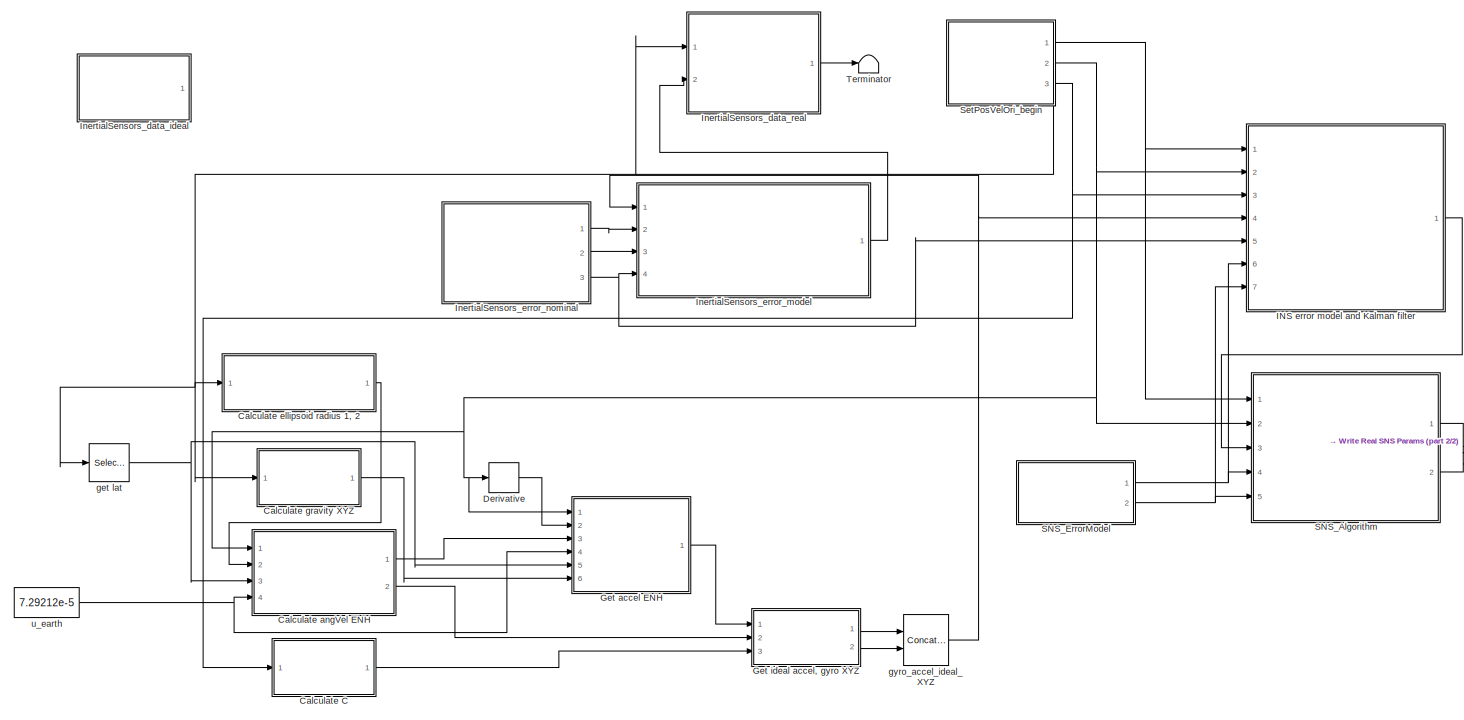
[diagram: root canvas - part 1/2, most of the canvas]
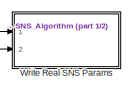
[diagram: root canvas - part 2/2, middle right region]
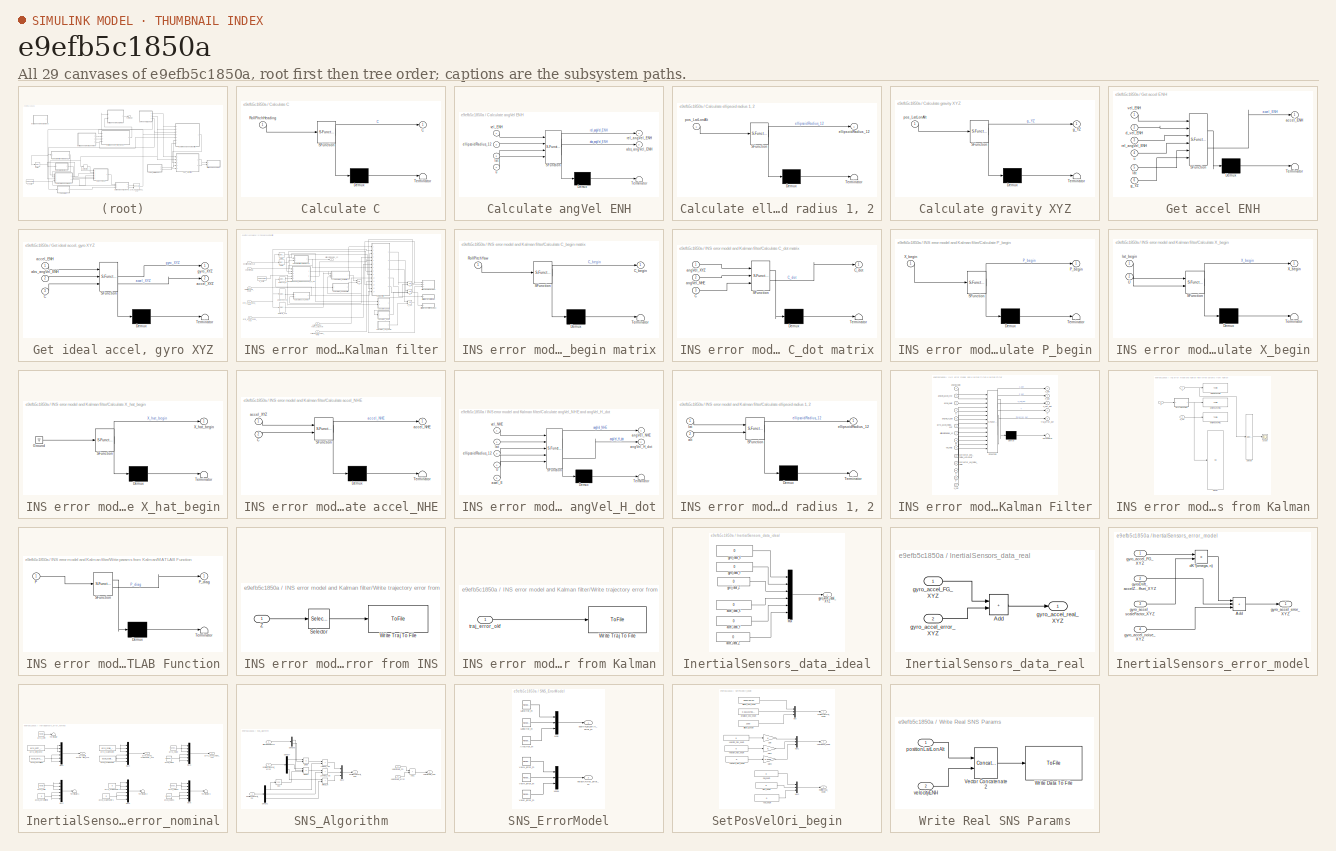
[diagram: thumbnail index - all 29 canvases of the model, root first then tree order]
MODEL slx_e9efb5c1850a
KIND model
CONFIG AbsTol = auto
CONFIG EnableMultiTasking = off
CONFIG FixedStep = 0.01
CONFIG MaxStep = auto
CONFIG MinStep = auto
CONFIG RelTol = 1e-3
CONFIG SampleTimeConstraint = Unconstrained
CONFIG SolverName = VariableStepAuto
CONFIG StartTime = 0.0
CONFIG StopTime = 7200
WORKSPACE source: mxarray member
WORKSPACE enableTransmit = 1
BLOCK [SubSystem] Calculate C
  ErrorFcn = Stateflow.Translate.translate
  PermitHierarchicalResolution = ExplicitOnly
  Ports = [1, 1]
  RequestExecContextInheritance = off
  SFBlockType = MATLAB Function
  TreatAsAtomicUnit = on
BLOCK [Demux] Calculate C/ Demux 
  Outputs = 1
  Ports = [1, 1]
BLOCK [S-Function] Calculate C/ SFunction 
  EnableBusSupport = on
  FunctionName = sf_sfun
  PortCounts = [1 2]
  Ports = [1, 2]
  SFcnIsStateOwnerBlock = off
  SFunctionDeploymentMode = off
  Tag = Stateflow S-Function 5
BLOCK [Terminator] Calculate C/ Terminator 
BLOCK [Outport] Calculate C/C
BLOCK [Inport] Calculate C/RollPitchHeading
BLOCK [SubSystem] Calculate angVel ENH
  ErrorFcn = Stateflow.Translate.translate
  PermitHierarchicalResolution = ExplicitOnly
  Ports = [4, 2]
  RequestExecContextInheritance = off
  SFBlockType = MATLAB Function
  TreatAsAtomicUnit = on
BLOCK [Demux] Calculate angVel ENH/ Demux 
  Outputs = 1
  Ports = [1, 1]
BLOCK [S-Function] Calculate angVel ENH/ SFunction 
  EnableBusSupport = on
  FunctionName = sf_sfun
  PortCounts = [4 3]
  Ports = [4, 3]
  SFcnIsStateOwnerBlock = off
  SFunctionDeploymentMode = off
  Tag = Stateflow S-Function 3
BLOCK [Terminator] Calculate angVel ENH/ Terminator 
BLOCK [Outport] Calculate angVel ENH/abs_angVel_ENH
  Port = 2
BLOCK [Inport] Calculate angVel ENH/ellipsoidRadius_12
  Port = 2
BLOCK [Inport] Calculate angVel ENH/lat
  Port = 3
BLOCK [Outport] Calculate angVel ENH/rel_angVel_ENH
BLOCK [Inport] Calculate angVel ENH/u
  Port = 4
BLOCK [Inport] Calculate angVel ENH/vel_ENH
BLOCK [SubSystem] Calculate ellipsoid radius 1, 2
  ErrorFcn = Stateflow.Translate.translate
  PermitHierarchicalResolution = ExplicitOnly
  Ports = [1, 1]
  RequestExecContextInheritance = off
  SFBlockType = MATLAB Function
  TreatAsAtomicUnit = on
BLOCK [Demux] Calculate ellipsoid radius 1, 2/ Demux 
  Outputs = 1
  Ports = [1, 1]
BLOCK [S-Function] Calculate ellipsoid radius 1, 2/ SFunction 
  EnableBusSupport = on
  FunctionName = sf_sfun
  PortCounts = [1 2]
  Ports = [1, 2]
  SFcnIsStateOwnerBlock = off
  SFunctionDeploymentMode = off
  Tag = Stateflow S-Function 1
BLOCK [Terminator] Calculate ellipsoid radius 1, 2/ Terminator 
BLOCK [Outport] Calculate ellipsoid radius 1, 2/ellipsoidRadius_12
BLOCK [Inport] Calculate ellipsoid radius 1, 2/pos_LatLonAlt
BLOCK [SubSystem] Calculate gravity XYZ
  ErrorFcn = Stateflow.Translate.translate
  PermitHierarchicalResolution = ExplicitOnly
  Ports = [1, 1]
  RequestExecContextInheritance = off
  SFBlockType = MATLAB Function
  TreatAsAtomicUnit = on
BLOCK [Demux] Calculate gravity XYZ/ Demux 
  Outputs = 1
  Ports = [1, 1]
BLOCK [S-Function] Calculate gravity XYZ/ SFunction 
  EnableBusSupport = on
  FunctionName = sf_sfun
  PortCounts = [1 2]
  Ports = [1, 2]
  SFcnIsStateOwnerBlock = off
  SFunctionDeploymentMode = off
  Tag = Stateflow S-Function 2
BLOCK [Terminator] Calculate gravity XYZ/ Terminator 
BLOCK [Outport] Calculate gravity XYZ/g_YZ
BLOCK [Inport] Calculate gravity XYZ/pos_LatLonAlt
BLOCK [Derivative] Derivative
BLOCK [SubSystem] Get accel ENH
  ErrorFcn = Stateflow.Translate.translate
  PermitHierarchicalResolution = ExplicitOnly
  Ports = [6, 1]
  RequestExecContextInheritance = off
  SFBlockType = MATLAB Function
  TreatAsAtomicUnit = on
BLOCK [Demux] Get accel ENH/ Demux 
  Outputs = 1
  Ports = [1, 1]
BLOCK [S-Function] Get accel ENH/ SFunction 
  EnableBusSupport = on
  FunctionName = sf_sfun
  PortCounts = [6 2]
  Ports = [6, 2]
  SFcnIsStateOwnerBlock = off
  SFunctionDeploymentMode = off
  Tag = Stateflow S-Function 6
BLOCK [Terminator] Get accel ENH/ Terminator 
BLOCK [Outport] Get accel ENH/accel_ENH
BLOCK [Inport] Get accel ENH/d_vel_ENH
  Port = 2
BLOCK [Inport] Get accel ENH/g_YZ
  Port = 6
BLOCK [Inport] Get accel ENH/lat
  Port = 5
BLOCK [Inport] Get accel ENH/rel_angVel_ENH
  Port = 3
BLOCK [Inport] Get accel ENH/u
  Port = 4
BLOCK [Inport] Get accel ENH/vel_ENH
BLOCK [SubSystem] Get ideal accel, gyro XYZ
  ErrorFcn = Stateflow.Translate.translate
  PermitHierarchicalResolution = ExplicitOnly
  Ports = [3, 2]
  RequestExecContextInheritance = off
  SFBlockType = MATLAB Function
  TreatAsAtomicUnit = on
BLOCK [Demux] Get ideal accel, gyro XYZ/ Demux 
  Outputs = 1
  Ports = [1, 1]
BLOCK [S-Function] Get ideal accel, gyro XYZ/ SFunction 
  EnableBusSupport = on
  FunctionName = sf_sfun
  PortCounts = [3 3]
  Ports = [3, 3]
  SFcnIsStateOwnerBlock = off
  SFunctionDeploymentMode = off
  Tag = Stateflow S-Function 16
BLOCK [Terminator] Get ideal accel, gyro XYZ/ Terminator 
BLOCK [Inport] Get ideal accel, gyro XYZ/C
  Port = 3
BLOCK [Inport] Get ideal accel, gyro XYZ/abs_angVel_ENH
  Port = 2
BLOCK [Inport] Get ideal accel, gyro XYZ/accel_ENH
BLOCK [Outport] Get ideal accel, gyro XYZ/accel_XYZ
  Port = 2
BLOCK [Outport] Get ideal accel, gyro XYZ/gyro_XYZ
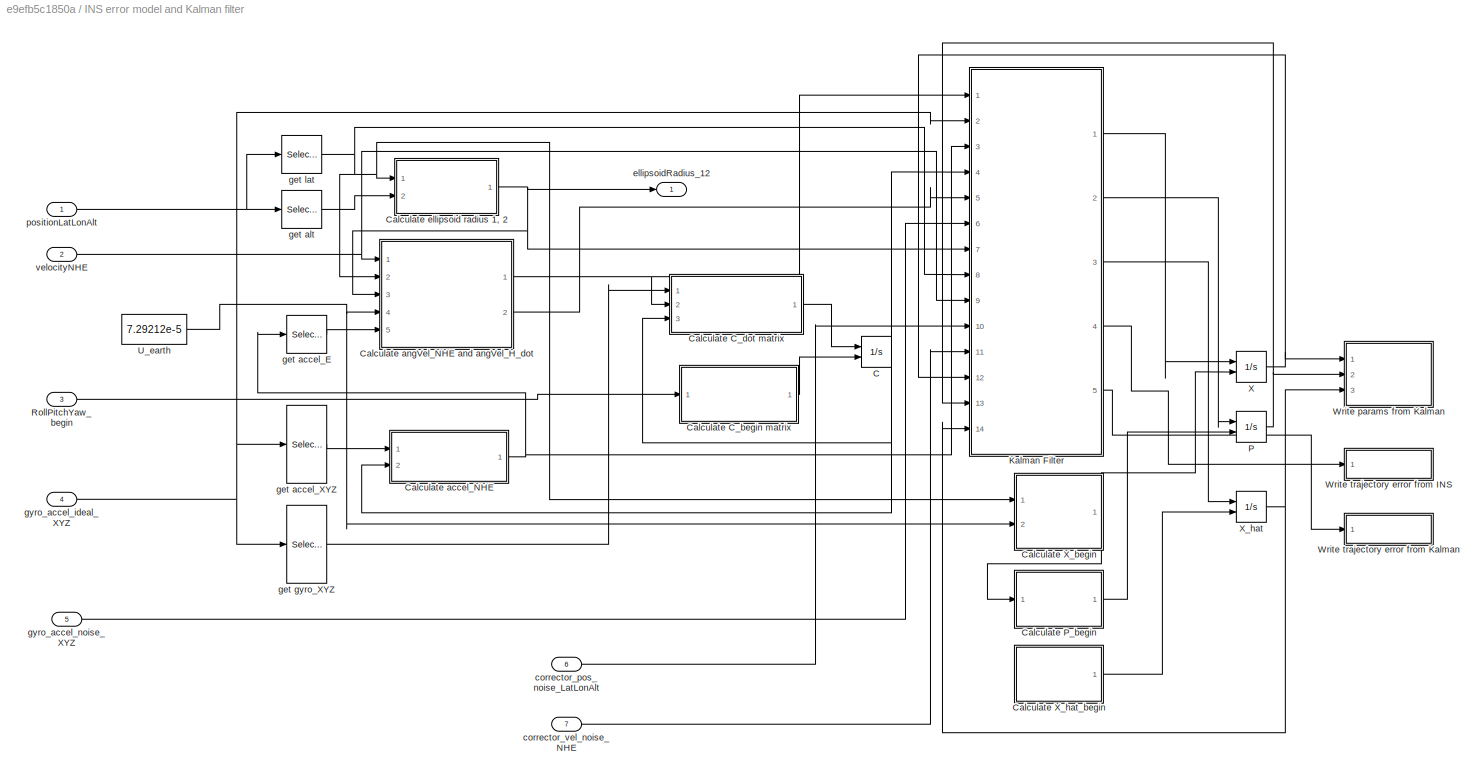
BLOCK [SubSystem] INS error model and Kalman filter
  Ports = [7, 1]
  RequestExecContextInheritance = off
BLOCK [Integrator] INS error model and Kalman filter/C
  InitialConditionSource = external
  Ports = [2, 1]
BLOCK [SubSystem] INS error model and Kalman filter/Calculate C_begin matrix
  ErrorFcn = Stateflow.Translate.translate
  PermitHierarchicalResolution = ExplicitOnly
  Ports = [1, 1]
  RequestExecContextInheritance = off
  SFBlockType = MATLAB Function
  TreatAsAtomicUnit = on
BLOCK [Demux] INS error model and Kalman filter/Calculate C_begin matrix/ Demux 
  Outputs = 1
  Ports = [1, 1]
BLOCK [S-Function] INS error model and Kalman filter/Calculate C_begin matrix/ SFunction 
  EnableBusSupport = on
  FunctionName = sf_sfun
  PortCounts = [1 2]
  Ports = [1, 2]
  SFcnIsStateOwnerBlock = off
  SFunctionDeploymentMode = off
  Tag = Stateflow S-Function 12
BLOCK [Terminator] INS error model and Kalman filter/Calculate C_begin matrix/ Terminator 
BLOCK [Outport] INS error model and Kalman filter/Calculate C_begin matrix/C_begin
BLOCK [Inport] INS error model and Kalman filter/Calculate C_begin matrix/RollPitchYaw
BLOCK [SubSystem] INS error model and Kalman filter/Calculate C_dot matrix
  ErrorFcn = Stateflow.Translate.translate
  PermitHierarchicalResolution = ExplicitOnly
  Ports = [3, 1]
  RequestExecContextInheritance = off
  SFBlockType = MATLAB Function
  TreatAsAtomicUnit = on
BLOCK [Demux] INS error model and Kalman filter/Calculate C_dot matrix/ Demux 
  Outputs = 1
  Ports = [1, 1]
BLOCK [S-Function] INS error model and Kalman filter/Calculate C_dot matrix/ SFunction 
  EnableBusSupport = on
  FunctionName = sf_sfun
  PortCounts = [3 2]
  Ports = [3, 2]
  SFcnIsStateOwnerBlock = off
  SFunctionDeploymentMode = off
  Tag = Stateflow S-Function 11
BLOCK [Terminator] INS error model and Kalman filter/Calculate C_dot matrix/ Terminator 
BLOCK [Inport] INS error model and Kalman filter/Calculate C_dot matrix/C
  Port = 3
BLOCK [Outport] INS error model and Kalman filter/Calculate C_dot matrix/C_dot
BLOCK [Inport] INS error model and Kalman filter/Calculate C_dot matrix/angVel_NHE
  Port = 2
BLOCK [Inport] INS error model and Kalman filter/Calculate C_dot matrix/angVel_XYZ
BLOCK [SubSystem] INS error model and Kalman filter/Calculate P_begin
  ErrorFcn = Stateflow.Translate.translate
  PermitHierarchicalResolution = ExplicitOnly
  Ports = [1, 1]
  RequestExecContextInheritance = off
  SFBlockType = MATLAB Function
  TreatAsAtomicUnit = on
BLOCK [Demux] INS error model and Kalman filter/Calculate P_begin/ Demux 
  Outputs = 1
  Ports = [1, 1]
BLOCK [S-Function] INS error model and Kalman filter/Calculate P_begin/ SFunction 
  EnableBusSupport = on
  FunctionName = sf_sfun
  PortCounts = [1 2]
  Ports = [1, 2]
  SFcnIsStateOwnerBlock = off
  SFunctionDeploymentMode = off
  Tag = Stateflow S-Function 15
BLOCK [Terminator] INS error model and Kalman filter/Calculate P_begin/ Terminator 
BLOCK [Outport] INS error model and Kalman filter/Calculate P_begin/P_begin
BLOCK [Inport] INS error model and Kalman filter/Calculate P_begin/X_begin
BLOCK [SubSystem] INS error model and Kalman filter/Calculate X_begin
  ErrorFcn = Stateflow.Translate.translate
  PermitHierarchicalResolution = ExplicitOnly
  Ports = [2, 1]
  RequestExecContextInheritance = off
  SFBlockType = MATLAB Function
  TreatAsAtomicUnit = on
BLOCK [Demux] INS error model and Kalman filter/Calculate X_begin/ Demux 
  Outputs = 1
  Ports = [1, 1]
BLOCK [S-Function] INS error model and Kalman filter/Calculate X_begin/ SFunction 
  EnableBusSupport = on
  FunctionName = sf_sfun
  PortCounts = [2 2]
  Ports = [2, 2]
  SFcnIsStateOwnerBlock = off
  SFunctionDeploymentMode = off
  Tag = Stateflow S-Function 13
BLOCK [Terminator] INS error model and Kalman filter/Calculate X_begin/ Terminator 
BLOCK [Inport] INS error model and Kalman filter/Calculate X_begin/U
  Port = 2
BLOCK [Outport] INS error model and Kalman filter/Calculate X_begin/X_begin
BLOCK [Inport] INS error model and Kalman filter/Calculate X_begin/lat_begin
BLOCK [SubSystem] INS error model and Kalman filter/Calculate X_hat_begin
  ErrorFcn = Stateflow.Translate.translate
  PermitHierarchicalResolution = ExplicitOnly
  Ports = [0, 1]
  RequestExecContextInheritance = off
  SFBlockType = MATLAB Function
  TreatAsAtomicUnit = on
BLOCK [Demux] INS error model and Kalman filter/Calculate X_hat_begin/ Demux 
  Outputs = 1
  Ports = [1, 1]
BLOCK [Ground] INS error model and Kalman filter/Calculate X_hat_begin/ Ground 
BLOCK [S-Function] INS error model and Kalman filter/Calculate X_hat_begin/ SFunction 
  EnableBusSupport = on
  FunctionName = sf_sfun
  PortCounts = [1 2]
  Ports = [1, 2]
  SFcnIsStateOwnerBlock = off
  SFunctionDeploymentMode = off
  Tag = Stateflow S-Function 14
BLOCK [Terminator] INS error model and Kalman filter/Calculate X_hat_begin/ Terminator 
BLOCK [Outport] INS error model and Kalman filter/Calculate X_hat_begin/X_hat_begin
BLOCK [SubSystem] INS error model and Kalman filter/Calculate accel_NHE
  ErrorFcn = Stateflow.Translate.translate
  PermitHierarchicalResolution = ExplicitOnly
  Ports = [2, 1]
  RequestExecContextInheritance = off
  SFBlockType = MATLAB Function
  TreatAsAtomicUnit = on
BLOCK [Demux] INS error model and Kalman filter/Calculate accel_NHE/ Demux 
  Outputs = 1
  Ports = [1, 1]
BLOCK [S-Function] INS error model and Kalman filter/Calculate accel_NHE/ SFunction 
  EnableBusSupport = on
  FunctionName = sf_sfun
  PortCounts = [2 2]
  Ports = [2, 2]
  SFcnIsStateOwnerBlock = off
  SFunctionDeploymentMode = off
  Tag = Stateflow S-Function 10
BLOCK [Terminator] INS error model and Kalman filter/Calculate accel_NHE/ Terminator 
BLOCK [Inport] INS error model and Kalman filter/Calculate accel_NHE/C
  Port = 2
BLOCK [Outport] INS error model and Kalman filter/Calculate accel_NHE/accel_NHE
BLOCK [Inport] INS error model and Kalman filter/Calculate accel_NHE/accel_XYZ
BLOCK [SubSystem] INS error model and Kalman filter/Calculate angVel_NHE and angVel_H_dot
  ErrorFcn = Stateflow.Translate.translate
  PermitHierarchicalResolution = ExplicitOnly
  Ports = [5, 2]
  RequestExecContextInheritance = off
  SFBlockType = MATLAB Function
  TreatAsAtomicUnit = on
BLOCK [Demux] INS error model and Kalman filter/Calculate angVel_NHE and angVel_H_dot/ Demux 
  Outputs = 1
  Ports = [1, 1]
BLOCK [S-Function] INS error model and Kalman filter/Calculate angVel_NHE and angVel_H_dot/ SFunction 
  EnableBusSupport = on
  FunctionName = sf_sfun
  PortCounts = [5 3]
  Ports = [5, 3]
  SFcnIsStateOwnerBlock = off
  SFunctionDeploymentMode = off
  Tag = Stateflow S-Function 9
BLOCK [Terminator] INS error model and Kalman filter/Calculate angVel_NHE and angVel_H_dot/ Terminator 
BLOCK [Inport] INS error model and Kalman filter/Calculate angVel_NHE and angVel_H_dot/U
  Port = 4
BLOCK [Inport] INS error model and Kalman filter/Calculate angVel_NHE and angVel_H_dot/accel_E
  Port = 5
BLOCK [Outport] INS error model and Kalman filter/Calculate angVel_NHE and angVel_H_dot/angVel_H_dot
  Port = 2
BLOCK [Outport] INS error model and Kalman filter/Calculate angVel_NHE and angVel_H_dot/angVel_NHE
BLOCK [Inport] INS error model and Kalman filter/Calculate angVel_NHE and angVel_H_dot/ellipsoidRadius_12
  Port = 3
BLOCK [Inport] INS error model and Kalman filter/Calculate angVel_NHE and angVel_H_dot/lat
  Port = 2
BLOCK [Inport] INS error model and Kalman filter/Calculate angVel_NHE and angVel_H_dot/vel_NHE
BLOCK [SubSystem] INS error model and Kalman filter/Calculate ellipsoid radius 1, 2
  ErrorFcn = Stateflow.Translate.translate
  PermitHierarchicalResolution = ExplicitOnly
  Ports = [2, 1]
  RequestExecContextInheritance = off
  SFBlockType = MATLAB Function
  TreatAsAtomicUnit = on
BLOCK [Demux] INS error model and Kalman filter/Calculate ellipsoid radius 1, 2/ Demux 
  Outputs = 1
  Ports = [1, 1]
BLOCK [S-Function] INS error model and Kalman filter/Calculate ellipsoid radius 1, 2/ SFunction 
  EnableBusSupport = on
  FunctionName = sf_sfun
  PortCounts = [2 2]
  Ports = [2, 2]
  SFcnIsStateOwnerBlock = off
  SFunctionDeploymentMode = off
  Tag = Stateflow S-Function 7
BLOCK [Terminator] INS error model and Kalman filter/Calculate ellipsoid radius 1, 2/ Terminator 
BLOCK [Inport] INS error model and Kalman filter/Calculate ellipsoid radius 1, 2/alt
  Port = 2
BLOCK [Outport] INS error model and Kalman filter/Calculate ellipsoid radius 1, 2/ellipsoidRadius_12
BLOCK [Inport] INS error model and Kalman filter/Calculate ellipsoid radius 1, 2/lat
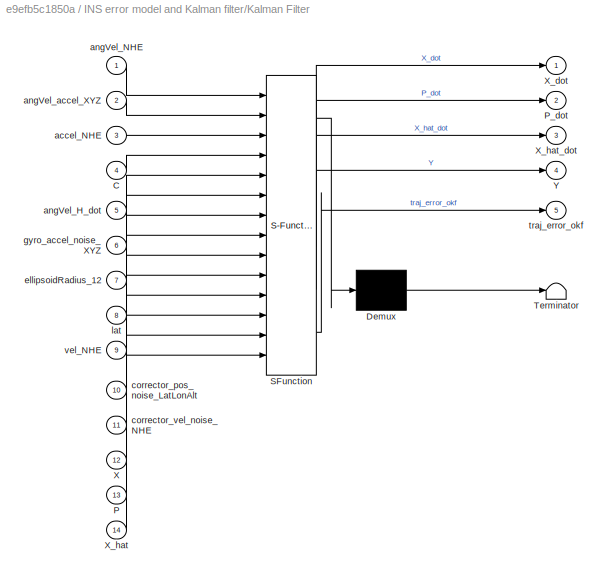
BLOCK [SubSystem] INS error model and Kalman filter/Kalman Filter
  ErrorFcn = Stateflow.Translate.translate
  PermitHierarchicalResolution = ExplicitOnly
  Ports = [14, 5]
  RequestExecContextInheritance = off
  SFBlockType = MATLAB Function
  TreatAsAtomicUnit = on
BLOCK [Demux] INS error model and Kalman filter/Kalman Filter/ Demux 
  Outputs = 1
  Ports = [1, 1]
BLOCK [S-Function] INS error model and Kalman filter/Kalman Filter/ SFunction 
  EnableBusSupport = on
  FunctionName = sf_sfun
  PortCounts = [14 6]
  Ports = [14, 6]
  SFcnIsStateOwnerBlock = off
  SFunctionDeploymentMode = off
  Tag = Stateflow S-Function 8
BLOCK [Terminator] INS error model and Kalman filter/Kalman Filter/ Terminator 
BLOCK [Inport] INS error model and Kalman filter/Kalman Filter/C
  Port = 4
BLOCK [Inport] INS error model and Kalman filter/Kalman Filter/P
  Port = 13
BLOCK [Outport] INS error model and Kalman filter/Kalman Filter/P_dot
  Port = 2
BLOCK [Inport] INS error model and Kalman filter/Kalman Filter/X
  Port = 12
BLOCK [Outport] INS error model and Kalman filter/Kalman Filter/X_dot
BLOCK [Inport] INS error model and Kalman filter/Kalman Filter/X_hat
  Port = 14
BLOCK [Outport] INS error model and Kalman filter/Kalman Filter/X_hat_dot
  Port = 3
BLOCK [Outport] INS error model and Kalman filter/Kalman Filter/Y
  Port = 4
BLOCK [Inport] INS error model and Kalman filter/Kalman Filter/accel_NHE
  Port = 3
BLOCK [Inport] INS error model and Kalman filter/Kalman Filter/angVel_H_dot
  Port = 5
BLOCK [Inport] INS error model and Kalman filter/Kalman Filter/angVel_NHE
BLOCK [Inport] INS error model and Kalman filter/Kalman Filter/angVel_accel_XYZ
  Port = 2
BLOCK [Inport] INS error model and Kalman filter/Kalman Filter/corrector_pos_noise_LatLonAlt
  Port = 10
BLOCK [Inport] INS error model and Kalman filter/Kalman Filter/corrector_vel_noise_NHE
  Port = 11
BLOCK [Inport] INS error model and Kalman filter/Kalman Filter/ellipsoidRadius_12
  Port = 7
BLOCK [Inport] INS error model and Kalman filter/Kalman Filter/gyro_accel_noise_XYZ
  Port = 6
BLOCK [Inport] INS error model and Kalman filter/Kalman Filter/lat
  Port = 8
BLOCK [Outport] INS error model and Kalman filter/Kalman Filter/traj_error_okf
  Port = 5
BLOCK [Inport] INS error model and Kalman filter/Kalman Filter/vel_NHE
  Port = 9
BLOCK [Integrator] INS error model and Kalman filter/P
  InitialConditionSource = external
  Ports = [2, 1]
BLOCK [Inport] INS error model and Kalman filter/RollPitchYaw_begin
  Port = 3
BLOCK [Constant] INS error model and Kalman filter/U_earth
  Value = 7.29212e-5
BLOCK [SubSystem] INS error model and Kalman filter/Write params from Kalman
  Ports = [3]
  RequestExecContextInheritance = off
BLOCK [Display] INS error model and Kalman filter/Write params from Kalman/Display
  Decimation = 1
  Ports = [1]
BLOCK [SubSystem] INS error model and Kalman filter/Write params from Kalman/MATLAB Function
  ErrorFcn = Stateflow.Translate.translate
  PermitHierarchicalResolution = ExplicitOnly
  Ports = [1, 1]
  RequestExecContextInheritance = off
  SFBlockType = MATLAB Function
  TreatAsAtomicUnit = on
BLOCK [Demux] INS error model and Kalman filter/Write params from Kalman/MATLAB Function/ Demux 
  Outputs = 1
  Ports = [1, 1]
BLOCK [S-Function] INS error model and Kalman filter/Write params from Kalman/MATLAB Function/ SFunction 
  EnableBusSupport = on
  FunctionName = sf_sfun
  PortCounts = [1 2]
  Ports = [1, 2]
  SFcnIsStateOwnerBlock = off
  SFunctionDeploymentMode = off
  Tag = Stateflow S-Function 4
BLOCK [Terminator] INS error model and Kalman filter/Write params from Kalman/MATLAB Function/ Terminator 
BLOCK [Inport] INS error model and Kalman filter/Write params from Kalman/MATLAB Function/P
BLOCK [Outport] INS error model and Kalman filter/Write params from Kalman/MATLAB Function/P_diag
BLOCK [Inport] INS error model and Kalman filter/Write params from Kalman/P
  Port = 2
BLOCK [Scope] INS error model and Kalman filter/Write params from Kalman/Scope
  Floating = off
  NumInputPorts = 1
  Ports = [1]
  ScopeSpecificationString = Simulink.scopes.TimeScopeBlockCfg('CurrentConfiguration', extmgr.ConfigurationSet(extmgr.Configuration('Core','General UI',true),extmgr.Configuration('Core','Source UI',true),extmgr.Configuration('Sources','WiredSimulink',true),extmgr.Configuration('Visuals','Time Domain',true),extmgr.Configuration('Tools','Plot Navigation',true),extmgr.Configuration('Tools','Measurements',true)),'Version','2021b'...<+1ch>
BLOCK [Selector] INS error model and Kalman filter/Write params from Kalman/Selector
  IndexOptions = Index vector (dialog)
  Indices = [1]
  InputPortWidth = 19
  OutputSizes = 1
  Ports = [1, 1]
BLOCK [ToFile] INS error model and Kalman filter/Write params from Kalman/Write Real To File
  Filename = x_kalman.mat
  MatrixName = x_kalman
  Ports = [1]
BLOCK [ToFile] INS error model and Kalman filter/Write params from Kalman/Write Real To File1
  Filename = x_hat_kalman.mat
  MatrixName = x_hat_kalman
  Ports = [1]
BLOCK [ToFile] INS error model and Kalman filter/Write params from Kalman/Write Real To File2
  Filename = p_kalman.mat
  MatrixName = p_kalman
  Ports = [1]
BLOCK [Inport] INS error model and Kalman filter/Write params from Kalman/X
BLOCK [Inport] INS error model and Kalman filter/Write params from Kalman/X_hat
  Port = 3
BLOCK [SubSystem] INS error model and Kalman filter/Write trajectory error from INS
  Ports = [1]
  RequestExecContextInheritance = off
BLOCK [Selector] INS error model and Kalman filter/Write trajectory error from INS/Selector
  IndexOptions = Index vector (dialog)
  Indices = [1 2]
  InputPortWidth = 4
  OutputSizes = 1
  Ports = [1, 1]
BLOCK [ToFile] INS error model and Kalman filter/Write trajectory error from INS/Write Traj To File
  Filename = x_error_ins.mat
  MatrixName = x_error_ins
  Ports = [1]
BLOCK [Inport] INS error model and Kalman filter/Write trajectory error from INS/Z
BLOCK [SubSystem] INS error model and Kalman filter/Write trajectory error from Kalman
  Ports = [1]
  RequestExecContextInheritance = off
BLOCK [ToFile] INS error model and Kalman filter/Write trajectory error from Kalman/Write Traj To File
  Filename = x_error_okf.mat
  MatrixName = x_error_okf
  Ports = [1]
BLOCK [Inport] INS error model and Kalman filter/Write trajectory error from Kalman/traj_error_okf
BLOCK [Integrator] INS error model and Kalman filter/X
  InitialConditionSource = external
  Ports = [2, 1]
BLOCK [Integrator] INS error model and Kalman filter/X_hat
  InitialConditionSource = external
  Ports = [2, 1]
BLOCK [Inport] INS error model and Kalman filter/corrector_pos_noise_LatLonAlt
  Port = 6
BLOCK [Inport] INS error model and Kalman filter/corrector_vel_noise_NHE
  Port = 7
BLOCK [Outport] INS error model and Kalman filter/ellipsoidRadius_12
BLOCK [Selector] INS error model and Kalman filter/get accel_E
  IndexOptions = Index vector (dialog)
  Indices = [3]
  InputPortWidth = 3
  OutputSizes = 1
  Ports = [1, 1]
BLOCK [Selector] INS error model and Kalman filter/get accel_XYZ
  IndexOptions = Index vector (dialog)
  Indices = [4 5 6]
  InputPortWidth = 6
  OutputSizes = 1
  Ports = [1, 1]
BLOCK [Selector] INS error model and Kalman filter/get alt
  IndexOptions = Index vector (dialog)
  Indices = [3]
  InputPortWidth = 3
  OutputSizes = 1
  Ports = [1, 1]
BLOCK [Selector] INS error model and Kalman filter/get gyro_XYZ
  IndexOptions = Index vector (dialog)
  Indices = [1 2 3]
  InputPortWidth = 6
  OutputSizes = 1
  Ports = [1, 1]
BLOCK [Selector] INS error model and Kalman filter/get lat
  IndexOptions = Index vector (dialog)
  Indices = [1]
  InputPortWidth = 3
  OutputSizes = 1
  Ports = [1, 1]
BLOCK [Inport] INS error model and Kalman filter/gyro_accel_ideal_XYZ
  Port = 4
BLOCK [Inport] INS error model and Kalman filter/gyro_accel_noise_XYZ
  Port = 5
BLOCK [Inport] INS error model and Kalman filter/positionLatLonAlt
BLOCK [Inport] INS error model and Kalman filter/velocityNHE
  Port = 2
BLOCK [SubSystem] InertialSensors_data_ideal
  Ports = [0, 1]
  RequestExecContextInheritance = off
BLOCK [Mux] InertialSensors_data_ideal/Mux
  DisplayOption = bar
  Inputs = 6
  Ports = [6, 1]
BLOCK [Constant] InertialSensors_data_ideal/accel_ideal_X
  Value = 0
BLOCK [Constant] InertialSensors_data_ideal/accel_ideal_Y
  Value = 0
BLOCK [Constant] InertialSensors_data_ideal/accel_ideal_Z
  Value = 0
BLOCK [Outport] InertialSensors_data_ideal/gyro_accel_ideal_XYZ
BLOCK [Constant] InertialSensors_data_ideal/gyro_ideal_X
  Value = 0
BLOCK [Constant] InertialSensors_data_ideal/gyro_ideal_Y
  Value = 0
BLOCK [Constant] InertialSensors_data_ideal/gyro_ideal_Z
  Value = 0
BLOCK [SubSystem] InertialSensors_data_real
  Ports = [2, 1]
  RequestExecContextInheritance = off
BLOCK [Sum] InertialSensors_data_real/Add
  IconShape = rectangular
  Ports = [2, 1]
BLOCK [Inport] InertialSensors_data_real/gyro_accel_FG_XYZ
BLOCK [Inport] InertialSensors_data_real/gyro_accel_error_XYZ
  Port = 2
BLOCK [Outport] InertialSensors_data_real/gyro_accel_real_XYZ
BLOCK [SubSystem] InertialSensors_error_model
  Ports = [4, 1]
  RequestExecContextInheritance = off
BLOCK [Sum] InertialSensors_error_model/Add
  IconShape = rectangular
  Inputs = +++
  Ports = [3, 1]
BLOCK [Product] InertialSensors_error_model/dK*(omega, n)
  Ports = [2, 1]
BLOCK [Inport] InertialSensors_error_model/gyroDrift_accelZeroOffset_XYZ
  Port = 2
BLOCK [Inport] InertialSensors_error_model/gyro_accel_FG_XYZ
BLOCK [Outport] InertialSensors_error_model/gyro_accel_error_XYZ
BLOCK [Inport] InertialSensors_error_model/gyro_accel_noise_XYZ
  Port = 4
BLOCK [Inport] InertialSensors_error_model/gyro_accel_scaleFactor_XYZ
  Port = 3
BLOCK [SubSystem] InertialSensors_error_nominal
  Ports = [0, 3]
  RequestExecContextInheritance = off
BLOCK [Mux] InertialSensors_error_nominal/Mux1
  DisplayOption = bar
  Inputs = 6
  Ports = [6, 1]
BLOCK [Mux] InertialSensors_error_nominal/Mux2
  DisplayOption = bar
  Inputs = 6
  Ports = [6, 1]
BLOCK [Mux] InertialSensors_error_nominal/Mux3
  DisplayOption = bar
  Inputs = 6
  Ports = [6, 1]
BLOCK [Mux] InertialSensors_error_nominal/Mux4
  DisplayOption = bar
  Inputs = 6
  Ports = [6, 1]
BLOCK [Mux] InertialSensors_error_nominal/Mux5
  DisplayOption = bar
  Inputs = 6
  Ports = [6, 1]
BLOCK [Mux] InertialSensors_error_nominal/Mux6
  DisplayOption = bar
  Inputs = 6
  Ports = [6, 1]
BLOCK [Terminator] InertialSensors_error_nominal/Terminator
BLOCK [Terminator] InertialSensors_error_nominal/Terminator1
BLOCK [Terminator] InertialSensors_error_nominal/Terminator2
BLOCK [Terminator] InertialSensors_error_nominal/Terminator3
BLOCK [RandomNumber] InertialSensors_error_nominal/accel_noise
  SampleTime = 1
  Variance = accel_noise_deviation^2
BLOCK [RandomNumber] InertialSensors_error_nominal/accel_noise1
  SampleTime = 1
  Variance = 0
BLOCK [Constant] InertialSensors_error_nominal/accel_scaleFactor
  Value = accel_scale_factor
BLOCK [Constant] InertialSensors_error_nominal/accel_scaleFactor1
  Value = 0
BLOCK [Constant] InertialSensors_error_nominal/accel_zeroOffset
  Value = accel_zero_offset
  VectorParams1D = off
BLOCK [Constant] InertialSensors_error_nominal/accel_zeroOffset1
  Value = 0
BLOCK [Outport] InertialSensors_error_nominal/gyroDrift_accelZeroOffset_XYZ
BLOCK [Outport] InertialSensors_error_nominal/gyro_accel_noise_XYZ
  Port = 3
BLOCK [Outport] InertialSensors_error_nominal/gyro_accel_scaleFactor_XYZ
  Port = 2
BLOCK [Reference] InertialSensors_error_nominal/gyro_drift  REF=simulink/Sources/Ramp
  Ports = [0, 1]
  SourceBlock = simulink/Sources/Ramp
  SourceProductBaseCode = SL
  SourceType = Ramp
BLOCK [Reference] InertialSensors_error_nominal/gyro_drift1  REF=simulink/Sources/Ramp
  Ports = [0, 1]
  SourceBlock = simulink/Sources/Ramp
  SourceProductBaseCode = SL
  SourceType = Ramp
BLOCK [Constant] InertialSensors_error_nominal/gyro_drift_const
  Value = gyro_drift_const
BLOCK [RandomNumber] InertialSensors_error_nominal/gyro_noise
  SampleTime = 1
  Variance = gyro_noise_deviation^2
BLOCK [RandomNumber] InertialSensors_error_nominal/gyro_noise1
  SampleTime = 1
  Variance = 0
BLOCK [Constant] InertialSensors_error_nominal/gyro_scaleFactor
  Value = gyro_scale_factor
BLOCK [Constant] InertialSensors_error_nominal/gyro_scaleFactor1
  Value = 0
BLOCK [SubSystem] SNS_Algorithm
  Ports = [5, 2]
  RequestExecContextInheritance = off
BLOCK [Sum] SNS_Algorithm/Add1
  IconShape = rectangular
  Ports = [2, 1]
BLOCK [Sum] SNS_Algorithm/AltReal_m
  IconShape = rectangular
  Ports = [2, 1]
BLOCK [Trigonometry] SNS_Algorithm/Cos
  Operator = cos
  Ports = [1, 1]
BLOCK [Demux] SNS_Algorithm/Demux1
  Outputs = 3
  Ports = [1, 3]
BLOCK [Demux] SNS_Algorithm/Demux7
  Outputs = 3
  Ports = [1, 3]
BLOCK [Demux] SNS_Algorithm/Demux8
  Outputs = 2
  Ports = [1, 2]
BLOCK [Product] SNS_Algorithm/Divide
  Inputs = */
  Ports = [2, 1]
BLOCK [Product] SNS_Algorithm/Divide1
  Inputs = *//
  Ports = [3, 1]
BLOCK [Sum] SNS_Algorithm/LatSNS_rad
  IconShape = rectangular
  Ports = [2, 1]
BLOCK [Sum] SNS_Algorithm/LonReal_rad
  IconShape = rectangular
  Ports = [2, 1]
BLOCK [Mux] SNS_Algorithm/Mux2
  DisplayOption = bar
  Inputs = 3
  Ports = [3, 1]
BLOCK [Inport] SNS_Algorithm/ellipsoidRadius12
  Port = 3
BLOCK [Inport] SNS_Algorithm/positionLatLonAlt_FG
BLOCK [Outport] SNS_Algorithm/positionLatLonAlt_SNS
BLOCK [Inport] SNS_Algorithm/positionLatLonAlt_error
  Port = 4
BLOCK [Inport] SNS_Algorithm/velocityNHE_FG
  Port = 2
BLOCK [Outport] SNS_Algorithm/velocityNHE_SNS
  Port = 2
BLOCK [Inport] SNS_Algorithm/velocityNHE_error
  Port = 5
BLOCK [SubSystem] SNS_ErrorModel
  Ports = [0, 2]
  RequestExecContextInheritance = off
BLOCK [RandomNumber] SNS_ErrorModel/AltError_m
  NameLocation = right
  SampleTime = 0.1
  Seed = 1
  Variance = alt_error_deviation^2
BLOCK [RandomNumber] SNS_ErrorModel/LatError_m
  SampleTime = 0.1
  Seed = 1
  Variance = lat_error_deviation^2
BLOCK [RandomNumber] SNS_ErrorModel/LonError_m
  SampleTime = 0.1
  Seed = 1
  Variance = lon_error_deviation^2
BLOCK [Mux] SNS_ErrorModel/Mux
  DisplayOption = bar
  Inputs = 3
  Ports = [3, 1]
BLOCK [Mux] SNS_ErrorModel/Mux1
  DisplayOption = bar
  Inputs = 3
  Ports = [3, 1]
BLOCK [RandomNumber] SNS_ErrorModel/VelE_error_m
  SampleTime = 0.1
  Seed = 2
  Variance = vel_e_error_deviation^2
BLOCK [RandomNumber] SNS_ErrorModel/VelH_error_m
  SampleTime = 0.1
  Seed = 2
  Variance = vel_h_error_deviation^2
BLOCK [RandomNumber] SNS_ErrorModel/VelN_error_m
  SampleTime = 0.1
  Seed = 2
  Variance = vel_n_error_deviation^2
BLOCK [Outport] SNS_ErrorModel/positinLatLonAlt_error_m
BLOCK [Outport] SNS_ErrorModel/velocityNHE_error_m
  Port = 2
BLOCK [SubSystem] SetPosVelOri_begin
  Ports = [0, 3]
  RequestExecContextInheritance = off
BLOCK [Gain] SetPosVelOri_begin/Gain
BLOCK [Gain] SetPosVelOri_begin/Gain1
BLOCK [Gain] SetPosVelOri_begin/Gain2
  Gain = 0.3048
BLOCK [Mux] SetPosVelOri_begin/Mux
  DisplayOption = bar
  Inputs = 3
  Ports = [3, 1]
BLOCK [Mux] SetPosVelOri_begin/Mux1
  DisplayOption = bar
  Inputs = 3
  Ports = [3, 1]
BLOCK [Mux] SetPosVelOri_begin/Mux2
  DisplayOption = bar
  Inputs = 3
  Ports = [3, 1]
BLOCK [Constant] SetPosVelOri_begin/Pitch_begin
  Value = 0
BLOCK [Outport] SetPosVelOri_begin/RollPitchYaw_begin
  Port = 3
BLOCK [Constant] SetPosVelOri_begin/Roll_begin
  Value = 0
BLOCK [Constant] SetPosVelOri_begin/Yaw_begin
  Value = 0
BLOCK [Constant] SetPosVelOri_begin/altitude_ft_begin
  Value = 1000
BLOCK [Constant] SetPosVelOri_begin/latitude_deg_begin
  Value = deg2rad(56)
BLOCK [Constant] SetPosVelOri_begin/longitude_deg_begin
  Value = 0.6611314818805803
BLOCK [Outport] SetPosVelOri_begin/positionLatLonAlt_begin
BLOCK [Outport] SetPosVelOri_begin/velocityENH_begin
  Port = 2
BLOCK [Constant] SetPosVelOri_begin/velocityE_mps_begin
  Value = 0
BLOCK [Constant] SetPosVelOri_begin/velocityH_mps_begin
  Value = 0
BLOCK [Constant] SetPosVelOri_begin/velocityN_mps_begin
  Value = 0
BLOCK [Terminator] Terminator
BLOCK [SubSystem] Write Real SNS Params
  Ports = [2]
  RequestExecContextInheritance = off
BLOCK [Concatenate] Write Real SNS Params/Vector Concatenate2
  Mode = Multidimensional array
  Ports = [2, 1]
BLOCK [ToFile] Write Real SNS Params/Write Data To File
  Filename = D:\x_real_sns.mat
  MatrixName = x_real_sns
  Ports = [1]
BLOCK [Inport] Write Real SNS Params/positionLatLonAlt
BLOCK [Inport] Write Real SNS Params/velocityENH
  Port = 2
BLOCK [Selector] get lat
  IndexOptions = Index vector (dialog)
  Indices = [1]
  InputPortWidth = 3
  OutputSizes = 1
  Ports = [1, 1]
BLOCK [Concatenate] gyro_accel_ideal_XYZ
  Mode = Multidimensional array
  Ports = [2, 1]
BLOCK [Constant] u_earth
  Value = 7.29212e-5
LINE Calculate C:1 -> Get ideal accel, gyro XYZ:3
LINE Calculate angVel ENH:1 -> Get accel ENH:3
LINE Calculate angVel ENH:2 -> Get ideal accel, gyro XYZ:2
LINE Calculate ellipsoid radius 1, 2:1 -> Calculate angVel ENH:2
LINE Calculate gravity XYZ:1 -> Get accel ENH:6
LINE Derivative:1 -> Get accel ENH:2
LINE Get accel ENH:1 -> Get ideal accel, gyro XYZ:1
LINE Get ideal accel, gyro XYZ:1 -> gyro_accel_ideal_XYZ:1
LINE Get ideal accel, gyro XYZ:2 -> gyro_accel_ideal_XYZ:2
NET INS error model and Kalman filter/C:1 -> INS error model and Kalman filter/Calculate C_dot matrix:3, INS error model and Kalman filter/Calculate accel_NHE:2, INS error model and Kalman filter/Kalman Filter:4
LINE INS error model and Kalman filter/Calculate C_begin matrix:1 -> INS error model and Kalman filter/C:2
LINE INS error model and Kalman filter/Calculate C_dot matrix:1 -> INS error model and Kalman filter/C:1
LINE INS error model and Kalman filter/Calculate P_begin:1 -> INS error model and Kalman filter/P:2
NET INS error model and Kalman filter/Calculate X_begin:1 -> INS error model and Kalman filter/Calculate P_begin:1, INS error model and Kalman filter/X:2
LINE INS error model and Kalman filter/Calculate X_hat_begin:1 -> INS error model and Kalman filter/X_hat:2
NET INS error model and Kalman filter/Calculate accel_NHE:1 -> INS error model and Kalman filter/Kalman Filter:3, INS error model and Kalman filter/get accel_E:1
NET INS error model and Kalman filter/Calculate angVel_NHE and angVel_H_dot:1 -> INS error model and Kalman filter/Calculate C_dot matrix:2, INS error model and Kalman filter/Kalman Filter:1
LINE INS error model and Kalman filter/Calculate angVel_NHE and angVel_H_dot:2 -> INS error model and Kalman filter/Kalman Filter:5
NET INS error model and Kalman filter/Calculate ellipsoid radius 1, 2:1 -> INS error model and Kalman filter/Calculate angVel_NHE and angVel_H_dot:3, INS error model and Kalman filter/Kalman Filter:7, INS error model and Kalman filter/ellipsoidRadius_12:1
LINE INS error model and Kalman filter/Kalman Filter:1 -> INS error model and Kalman filter/X:1
LINE INS error model and Kalman filter/Kalman Filter:2 -> INS error model and Kalman filter/P:1
LINE INS error model and Kalman filter/Kalman Filter:3 -> INS error model and Kalman filter/X_hat:1
LINE INS error model and Kalman filter/Kalman Filter:4 -> INS error model and Kalman filter/Write trajectory error from INS:1
LINE INS error model and Kalman filter/Kalman Filter:5 -> INS error model and Kalman filter/Write trajectory error from Kalman:1
NET INS error model and Kalman filter/P:1 -> INS error model and Kalman filter/Kalman Filter:13, INS error model and Kalman filter/Write params from Kalman:2
LINE INS error model and Kalman filter/RollPitchYaw_begin:1 -> INS error model and Kalman filter/Calculate C_begin matrix:1
NET INS error model and Kalman filter/U_earth:1 -> INS error model and Kalman filter/Calculate X_begin:2, INS error model and Kalman filter/Calculate angVel_NHE and angVel_H_dot:4
NET INS error model and Kalman filter/Write params from Kalman/MATLAB Function:1 -> INS error model and Kalman filter/Write params from Kalman/Display:1, INS error model and Kalman filter/Write params from Kalman/Write Real To File2:1
LINE INS error model and Kalman filter/Write params from Kalman/P:1 -> INS error model and Kalman filter/Write params from Kalman/MATLAB Function:1
LINE INS error model and Kalman filter/Write params from Kalman/Selector:1 -> INS error model and Kalman filter/Write params from Kalman/Scope:1
NET INS error model and Kalman filter/Write params from Kalman/X:1 -> INS error model and Kalman filter/Write params from Kalman/Selector:1, INS error model and Kalman filter/Write params from Kalman/Write Real To File:1
LINE INS error model and Kalman filter/Write params from Kalman/X_hat:1 -> INS error model and Kalman filter/Write params from Kalman/Write Real To File1:1
LINE INS error model and Kalman filter/Write trajectory error from INS/Selector:1 -> INS error model and Kalman filter/Write trajectory error from INS/Write Traj To File:1
LINE INS error model and Kalman filter/Write trajectory error from INS/Z:1 -> INS error model and Kalman filter/Write trajectory error from INS/Selector:1
LINE INS error model and Kalman filter/Write trajectory error from Kalman/traj_error_okf:1 -> INS error model and Kalman filter/Write trajectory error from Kalman/Write Traj To File:1
NET INS error model and Kalman filter/X:1 -> INS error model and Kalman filter/Kalman Filter:12, INS error model and Kalman filter/Write params from Kalman:1
NET INS error model and Kalman filter/X_hat:1 -> INS error model and Kalman filter/Kalman Filter:14, INS error model and Kalman filter/Write params from Kalman:3
LINE INS error model and Kalman filter/corrector_pos_noise_LatLonAlt:1 -> INS error model and Kalman filter/Kalman Filter:10
LINE INS error model and Kalman filter/corrector_vel_noise_NHE:1 -> INS error model and Kalman filter/Kalman Filter:11
LINE INS error model and Kalman filter/get accel_E:1 -> INS error model and Kalman filter/Calculate angVel_NHE and angVel_H_dot:5
LINE INS error model and Kalman filter/get accel_XYZ:1 -> INS error model and Kalman filter/Calculate accel_NHE:1
LINE INS error model and Kalman filter/get alt:1 -> INS error model and Kalman filter/Calculate ellipsoid radius 1, 2:2
LINE INS error model and Kalman filter/get gyro_XYZ:1 -> INS error model and Kalman filter/Calculate C_dot matrix:1
NET INS error model and Kalman filter/get lat:1 -> INS error model and Kalman filter/Calculate X_begin:1, INS error model and Kalman filter/Calculate angVel_NHE and angVel_H_dot:2, INS error model and Kalman filter/Calculate ellipsoid radius 1, 2:1, INS error model and Kalman filter/Kalman Filter:8
NET INS error model and Kalman filter/gyro_accel_ideal_XYZ:1 -> INS error model and Kalman filter/Kalman Filter:2, INS error model and Kalman filter/get accel_XYZ:1, INS error model and Kalman filter/get gyro_XYZ:1
LINE INS error model and Kalman filter/gyro_accel_noise_XYZ:1 -> INS error model and Kalman filter/Kalman Filter:6
NET INS error model and Kalman filter/positionLatLonAlt:1 -> INS error model and Kalman filter/get alt:1, INS error model and Kalman filter/get lat:1
NET INS error model and Kalman filter/velocityNHE:1 -> INS error model and Kalman filter/Calculate angVel_NHE and angVel_H_dot:1, INS error model and Kalman filter/Kalman Filter:9
LINE INS error model and Kalman filter:1 -> SNS_Algorithm:3
LINE InertialSensors_data_ideal/Mux:1 -> InertialSensors_data_ideal/gyro_accel_ideal_XYZ:1
LINE InertialSensors_data_ideal/accel_ideal_X:1 -> InertialSensors_data_ideal/Mux:4
LINE InertialSensors_data_ideal/accel_ideal_Y:1 -> InertialSensors_data_ideal/Mux:5
LINE InertialSensors_data_ideal/accel_ideal_Z:1 -> InertialSensors_data_ideal/Mux:6
LINE InertialSensors_data_ideal/gyro_ideal_X:1 -> InertialSensors_data_ideal/Mux:1
LINE InertialSensors_data_ideal/gyro_ideal_Y:1 -> InertialSensors_data_ideal/Mux:2
LINE InertialSensors_data_ideal/gyro_ideal_Z:1 -> InertialSensors_data_ideal/Mux:3
LINE InertialSensors_data_real/Add:1 -> InertialSensors_data_real/gyro_accel_real_XYZ:1
LINE InertialSensors_data_real/gyro_accel_FG_XYZ:1 -> InertialSensors_data_real/Add:1
LINE InertialSensors_data_real/gyro_accel_error_XYZ:1 -> InertialSensors_data_real/Add:2
LINE InertialSensors_data_real:1 -> Terminator:1
LINE InertialSensors_error_model/Add:1 -> InertialSensors_error_model/gyro_accel_error_XYZ:1
LINE InertialSensors_error_model/dK*(omega, n):1 -> InertialSensors_error_model/Add:1
LINE InertialSensors_error_model/gyroDrift_accelZeroOffset_XYZ:1 -> InertialSensors_error_model/Add:2
LINE InertialSensors_error_model/gyro_accel_FG_XYZ:1 -> InertialSensors_error_model/dK*(omega, n):1
LINE InertialSensors_error_model/gyro_accel_noise_XYZ:1 -> InertialSensors_error_model/Add:3
LINE InertialSensors_error_model/gyro_accel_scaleFactor_XYZ:1 -> InertialSensors_error_model/dK*(omega, n):2
LINE InertialSensors_error_model:1 -> InertialSensors_data_real:2
LINE InertialSensors_error_nominal/Mux1:1 -> InertialSensors_error_nominal/gyroDrift_accelZeroOffset_XYZ:1
LINE InertialSensors_error_nominal/Mux2:1 -> InertialSensors_error_nominal/Terminator1:1
LINE InertialSensors_error_nominal/Mux3:1 -> InertialSensors_error_nominal/Terminator2:1
LINE InertialSensors_error_nominal/Mux4:1 -> InertialSensors_error_nominal/gyro_accel_scaleFactor_XYZ:1
LINE InertialSensors_error_nominal/Mux5:1 -> InertialSensors_error_nominal/gyro_accel_noise_XYZ:1
LINE InertialSensors_error_nominal/Mux6:1 -> InertialSensors_error_nominal/Terminator3:1
NET InertialSensors_error_nominal/accel_noise1:1 -> InertialSensors_error_nominal/Mux6:4, InertialSensors_error_nominal/Mux6:5, InertialSensors_error_nominal/Mux6:6
NET InertialSensors_error_nominal/accel_noise:1 -> InertialSensors_error_nominal/Mux5:4, InertialSensors_error_nominal/Mux5:5, InertialSensors_error_nominal/Mux5:6
NET InertialSensors_error_nominal/accel_scaleFactor1:1 -> InertialSensors_error_nominal/Mux3:4, InertialSensors_error_nominal/Mux3:5, InertialSensors_error_nominal/Mux3:6
NET InertialSensors_error_nominal/accel_scaleFactor:1 -> InertialSensors_error_nominal/Mux4:4, InertialSensors_error_nominal/Mux4:5, InertialSensors_error_nominal/Mux4:6
NET InertialSensors_error_nominal/accel_zeroOffset1:1 -> InertialSensors_error_nominal/Mux2:4, InertialSensors_error_nominal/Mux2:5, InertialSensors_error_nominal/Mux2:6
NET InertialSensors_error_nominal/accel_zeroOffset:1 -> InertialSensors_error_nominal/Mux1:4, InertialSensors_error_nominal/Mux1:5, InertialSensors_error_nominal/Mux1:6
NET InertialSensors_error_nominal/gyro_drift1:1 -> InertialSensors_error_nominal/Mux2:1, InertialSensors_error_nominal/Mux2:2, InertialSensors_error_nominal/Mux2:3
LINE InertialSensors_error_nominal/gyro_drift:1 -> InertialSensors_error_nominal/Terminator:1
NET InertialSensors_error_nominal/gyro_drift_const:1 -> InertialSensors_error_nominal/Mux1:1, InertialSensors_error_nominal/Mux1:2, InertialSensors_error_nominal/Mux1:3
NET InertialSensors_error_nominal/gyro_noise1:1 -> InertialSensors_error_nominal/Mux6:1, InertialSensors_error_nominal/Mux6:2, InertialSensors_error_nominal/Mux6:3
NET InertialSensors_error_nominal/gyro_noise:1 -> InertialSensors_error_nominal/Mux5:1, InertialSensors_error_nominal/Mux5:2, InertialSensors_error_nominal/Mux5:3
NET InertialSensors_error_nominal/gyro_scaleFactor1:1 -> InertialSensors_error_nominal/Mux3:1, InertialSensors_error_nominal/Mux3:2, InertialSensors_error_nominal/Mux3:3
NET InertialSensors_error_nominal/gyro_scaleFactor:1 -> InertialSensors_error_nominal/Mux4:1, InertialSensors_error_nominal/Mux4:2, InertialSensors_error_nominal/Mux4:3
LINE InertialSensors_error_nominal:1 -> InertialSensors_error_model:2
LINE InertialSensors_error_nominal:2 -> InertialSensors_error_model:3
NET InertialSensors_error_nominal:3 -> INS error model and Kalman filter:5, InertialSensors_error_model:4
LINE SNS_Algorithm/Add1:1 -> SNS_Algorithm/velocityNHE_SNS:1
LINE SNS_Algorithm/AltReal_m:1 -> SNS_Algorithm/Mux2:3
LINE SNS_Algorithm/Cos:1 -> SNS_Algorithm/Divide1:3
NET SNS_Algorithm/Demux1:1 -> SNS_Algorithm/Cos:1, SNS_Algorithm/LatSNS_rad:2
LINE SNS_Algorithm/Demux1:2 -> SNS_Algorithm/LonReal_rad:2
LINE SNS_Algorithm/Demux1:3 -> SNS_Algorithm/AltReal_m:2
LINE SNS_Algorithm/Demux7:1 -> SNS_Algorithm/Divide:1
LINE SNS_Algorithm/Demux7:2 -> SNS_Algorithm/Divide1:1
LINE SNS_Algorithm/Demux7:3 -> SNS_Algorithm/AltReal_m:1
LINE SNS_Algorithm/Demux8:1 -> SNS_Algorithm/Divide1:2
LINE SNS_Algorithm/Demux8:2 -> SNS_Algorithm/Divide:2
LINE SNS_Algorithm/Divide1:1 -> SNS_Algorithm/LonReal_rad:1
LINE SNS_Algorithm/Divide:1 -> SNS_Algorithm/LatSNS_rad:1
LINE SNS_Algorithm/LatSNS_rad:1 -> SNS_Algorithm/Mux2:1
LINE SNS_Algorithm/LonReal_rad:1 -> SNS_Algorithm/Mux2:2
LINE SNS_Algorithm/Mux2:1 -> SNS_Algorithm/positionLatLonAlt_SNS:1
LINE SNS_Algorithm/ellipsoidRadius12:1 -> SNS_Algorithm/Demux8:1
LINE SNS_Algorithm/positionLatLonAlt_FG:1 -> SNS_Algorithm/Demux1:1
LINE SNS_Algorithm/positionLatLonAlt_error:1 -> SNS_Algorithm/Demux7:1
LINE SNS_Algorithm/velocityNHE_FG:1 -> SNS_Algorithm/Add1:1
LINE SNS_Algorithm/velocityNHE_error:1 -> SNS_Algorithm/Add1:2
LINE SNS_Algorithm:1 -> Write Real SNS Params:1
LINE SNS_Algorithm:2 -> Write Real SNS Params:2
LINE SNS_ErrorModel/AltError_m:1 -> SNS_ErrorModel/Mux:3
LINE SNS_ErrorModel/LatError_m:1 -> SNS_ErrorModel/Mux:1
LINE SNS_ErrorModel/LonError_m:1 -> SNS_ErrorModel/Mux:2
LINE SNS_ErrorModel/Mux1:1 -> SNS_ErrorModel/velocityNHE_error_m:1
LINE SNS_ErrorModel/Mux:1 -> SNS_ErrorModel/positinLatLonAlt_error_m:1
LINE SNS_ErrorModel/VelE_error_m:1 -> SNS_ErrorModel/Mux1:3
LINE SNS_ErrorModel/VelH_error_m:1 -> SNS_ErrorModel/Mux1:2
LINE SNS_ErrorModel/VelN_error_m:1 -> SNS_ErrorModel/Mux1:1
NET SNS_ErrorModel:1 -> INS error model and Kalman filter:6, SNS_Algorithm:4
NET SNS_ErrorModel:2 -> INS error model and Kalman filter:7, SNS_Algorithm:5
LINE SetPosVelOri_begin/Gain1:1 -> SetPosVelOri_begin/Mux1:2
LINE SetPosVelOri_begin/Gain2:1 -> SetPosVelOri_begin/Mux1:3
LINE SetPosVelOri_begin/Gain:1 -> SetPosVelOri_begin/Mux1:1
LINE SetPosVelOri_begin/Mux1:1 -> SetPosVelOri_begin/velocityENH_begin:1
LINE SetPosVelOri_begin/Mux2:1 -> SetPosVelOri_begin/RollPitchYaw_begin:1
LINE SetPosVelOri_begin/Mux:1 -> SetPosVelOri_begin/positionLatLonAlt_begin:1
LINE SetPosVelOri_begin/Pitch_begin:1 -> SetPosVelOri_begin/Mux2:2
LINE SetPosVelOri_begin/Roll_begin:1 -> SetPosVelOri_begin/Mux2:1
LINE SetPosVelOri_begin/Yaw_begin:1 -> SetPosVelOri_begin/Mux2:3
LINE SetPosVelOri_begin/altitude_ft_begin:1 -> SetPosVelOri_begin/Mux:3
LINE SetPosVelOri_begin/latitude_deg_begin:1 -> SetPosVelOri_begin/Mux:1
LINE SetPosVelOri_begin/longitude_deg_begin:1 -> SetPosVelOri_begin/Mux:2
LINE SetPosVelOri_begin/velocityE_mps_begin:1 -> SetPosVelOri_begin/Gain:1
LINE SetPosVelOri_begin/velocityH_mps_begin:1 -> SetPosVelOri_begin/Gain2:1
LINE SetPosVelOri_begin/velocityN_mps_begin:1 -> SetPosVelOri_begin/Gain1:1
NET SetPosVelOri_begin:1 -> Calculate ellipsoid radius 1, 2:1, Calculate gravity XYZ:1, INS error model and Kalman filter:1, SNS_Algorithm:1, get lat:1
NET SetPosVelOri_begin:2 -> Calculate angVel ENH:1, Derivative:1, Get accel ENH:1, INS error model and Kalman filter:2, SNS_Algorithm:2
NET SetPosVelOri_begin:3 -> Calculate C:1, INS error model and Kalman filter:3
LINE Write Real SNS Params/Vector Concatenate2:1 -> Write Real SNS Params/Write Data To File:1
LINE Write Real SNS Params/positionLatLonAlt:1 -> Write Real SNS Params/Vector Concatenate2:1
LINE Write Real SNS Params/velocityENH:1 -> Write Real SNS Params/Vector Concatenate2:2
NET get lat:1 -> Calculate angVel ENH:3, Get accel ENH:5
NET gyro_accel_ideal_XYZ:1 -> INS error model and Kalman filter:4, InertialSensors_data_real:1, InertialSensors_error_model:1
NET u_earth:1 -> Calculate angVel ENH:4, Get accel ENH:4
note: NET lines group one-source signal fan-out (src -> all destinations, sorted); 1:1 wires keep LINE
CHART INS error model
and Kalman filter/Calculate angVel_NHE and 
angVel_H_dot states=1 transitions=1
  STATE_LABEL 'eML_blk_kernel()'
  STATE_LABEL 'SCRIPT:\nfunction [angVel_NHE, angVel_H_dot] = fcn(vel_NHE, lat, ellipsoidRadius_12, U, accel_E)\n    angVel_E = -vel_NHE(1) / ellipsoidRadius_12(1);\n    angVel_N = vel_NHE(3) / ellipsoidRadius_12(2) + U * cos(lat);\n    angVel_H = vel_NHE(3) / ellipsoidRadius_12(2) * tan(lat) + U * sin(lat);\n    \n    angVel_NHE = [angVel_N; angVel_H; angVel_E];\n\n    angVel_H_dot = (U * cos(lat) * vel_NHE(1) + accel_...<+150ch>'
CHART INS error model
and Kalman filter/Calculate accel_NHE states=1 transitions=1
  STATE_LABEL 'eML_blk_kernel()'
  STATE_LABEL 'SCRIPT:\nfunction accel_NHE = fcn(accel_XYZ, C)\n    \n    accel_NHE = C * accel_XYZ;\nend\n'
CHART INS error model
and Kalman filter/Calculate C_dot matrix states=1 transitions=1
  STATE_LABEL 'eML_blk_kernel()'
  STATE_LABEL 'SCRIPT:\nfunction C_dot = fcn(angVel_XYZ, angVel_NHE, C)\n    \n    angVel_XYZ_matrix = [ 0, -angVel_XYZ(3), angVel_XYZ(2);\n                        angVel_XYZ(3), 0, -angVel_XYZ(1);\n                        -angVel_XYZ(2), angVel_XYZ(1), 0 ];\n    angVel_NHE_matrix = [ 0, -angVel_NHE(3), angVel_NHE(2);\n                        angVel_NHE(3), 0, -angVel_NHE(1);\n                        -angVel_NHE(2), ang...<+86ch>'
CHART INS error model
and Kalman filter/Calculate C_begin matrix states=1 transitions=1
  STATE_LABEL 'eML_blk_kernel()'
  STATE_LABEL 'SCRIPT:\nfunction C_begin = fcn(RollPitchYaw)\n    cos_roll = cos(RollPitchYaw(1));\n    cos_pitch = cos(RollPitchYaw(2));\n    cos_yaw = cos(RollPitchYaw(3));\n    sin_roll = sin(RollPitchYaw(1));\n    sin_pitch = sin(RollPitchYaw(2));\n    sin_yaw = sin(RollPitchYaw(3));\n\n    C_begin = zeros(3, 3);\n    C_begin(:, 1) = [cos_pitch * cos_yaw; %left column\n                    sin_pitch;\n                   ...<+440ch>'
CHART INS error model
and Kalman filter/Calculate X_begin states=1 transitions=1
  STATE_LABEL 'eML_blk_kernel()'
  STATE_LABEL 'SCRIPT:\nfunction X_begin = fcn(lat_begin, U)\n\n    x1_begin = 20;\n    x2_begin = 20;\n    d_vel_E = 1;\n    d_vel_N = 1;\n    alpha_begin = deg2rad(0.02);\n    beta_begin = deg2rad(0.02);\n    gamma_begin = deg2rad(0.02);\n    %gyro_drift_begin = 0.015*pi/180/3600;\n    gyro_drift_begin = deg2rad(0.015) / 3600;\n    %gyro_scaleFactor_begin = 5e-4;\n    gyro_scaleFactor_begin = 5e-4;\n    %accel_zeroOffset_be...<+622ch>'
CHART INS error model
and Kalman filter/Calculate X_hat_begin states=1 transitions=1
  STATE_LABEL 'eML_blk_kernel()'
  STATE_LABEL 'SCRIPT:\nfunction X_hat_begin = fcn()\n\n    X_hat_begin = zeros(19, 1);\n\nend\n'
CHART INS error model
and Kalman filter/Calculate P_begin states=1 transitions=1
  STATE_LABEL 'eML_blk_kernel()'
  STATE_LABEL "SCRIPT:\nfunction P_begin = fcn(X_begin)\n\n    %P_begin = diag(X_begin).^2;\n    P_begin = X_begin * X_begin';\n\nend\n"
CHART Get ideal accel, gyro XYZ states=1 transitions=1
  STATE_LABEL 'eML_blk_kernel()'
  STATE_LABEL "SCRIPT:\nfunction [gyro_XYZ, accel_XYZ] = fcn(accel_ENH, abs_angVel_ENH, C)\n    accel_XYZ = C' * accel_ENH;\n    gyro_XYZ = C' * abs_angVel_ENH;\nend\n"
CHART Calculate ellipsoid radius 1, 2 states=1 transitions=1
  STATE_LABEL 'eML_blk_kernel()'
  STATE_LABEL 'SCRIPT:\nfunction ellipsoidRadius_12 = fcn(pos_LatLonAlt)\n    lat = pos_LatLonAlt(1);\n    alt = pos_LatLonAlt(3);\n    a = 6378245; %big semiaxis\n    b = 6356863; %small semiaxis\n    e2 = (a^2 - b^2) / a^2; %square of the first eccentricity\n    denom = sqrt(1 - e2 * sin(lat)^2); %denominator\n\n    ro1 = a * (1 - e2) / denom^3 + alt;\n    ro2 = a / denom + alt;\n    ellipsoidRadius_12 = [ro1; ro2];\nend\n'
CHART Calculate gravity XYZ states=1 transitions=1
  STATE_LABEL 'eML_blk_kernel()'
  STATE_LABEL 'SCRIPT:\nfunction g_YZ = fcn(pos_LatLonAlt)\n    lat = pos_LatLonAlt(1);\n    alt = pos_LatLonAlt(3);\n    g_e = 9.78049;\n    q = 0.00346775;\n    beta = 0.0053171;\n    beta_1 = 71e-7;\n    a = 6378245; %big semiaxis\n    b = 6356863; %small semiaxis\n    e2 = (a^2 - b^2) / a^2; %square of the first eccentricity\n\n    g_0 = g_e * (1 + beta * (sin(lat))^2 + beta_1 * (sin(2 * lat))^2);  \n    g_y = g_0 * sin(...<+195ch>'
CHART Calculate angVel ENH states=1 transitions=1
  STATE_LABEL 'eML_blk_kernel()'
  STATE_LABEL 'SCRIPT:\nfunction [rel_angVel_ENH, abs_angVel_ENH] = fcn(vel_ENH, ellipsoidRadius_12, lat, u)\n    rel_angVel_E = -vel_ENH(2) / ellipsoidRadius_12(1);\n    rel_angVel_N = vel_ENH(1) / ellipsoidRadius_12(2);\n    rel_angVel_H = vel_ENH(1) / ellipsoidRadius_12(2) * tan(lat);\n    rel_angVel_ENH = [rel_angVel_E; rel_angVel_N; rel_angVel_H];\n\n    abs_angVel_E = rel_angVel_E;\n    abs_angVel_N = rel_angVel_N...<+134ch>'
CHART INS error model
and Kalman filter/Write params from Kalman/MATLAB Function states=1 transitions=1
  STATE_LABEL 'eML_blk_kernel()'
  STATE_LABEL 'SCRIPT:\nfunction P_diag = get_diag(P)\n    P_diag = zeros(19, 1);\n    for i = 1:1:19\n        P_diag(i) = P(i, i);\n    end\nend\n'
CHART Calculate C states=1 transitions=1
  STATE_LABEL 'eML_blk_kernel()'
  STATE_LABEL 'SCRIPT:\nfunction C = fcn(RollPitchHeading)\n    C = zeros(3, 3);\n    cos_gamma = cos(RollPitchHeading(1));\n    cos_theta = cos(RollPitchHeading(2));\n    cos_psi = cos(RollPitchHeading(3));\n    sin_gamma = sin(RollPitchHeading(1));\n    sin_theta = sin(RollPitchHeading(2));\n    sin_psi = sin(RollPitchHeading(3));\n\n    C(1, 1) = -sin_psi * cos_theta;\n    C(1, 2) = sin_psi * sin_theta * cos_gamma + cos...<+366ch>'
CHART Get accel ENH states=1 transitions=1
  STATE_LABEL 'eML_blk_kernel()'
  STATE_LABEL 'SCRIPT:\nfunction accel_ENH = fcn(vel_ENH, d_vel_ENH, rel_angVel_ENH, u, lat, g_YZ)\n    u_N = u * cos(lat);\n    u_H = u * sin(lat);\n\n    accel_E = d_vel_ENH(1) - (rel_angVel_ENH(3) + 2 * u_H) * vel_ENH(2) + (rel_angVel_ENH(2) + 2 * u_N) * vel_ENH(3);\n    accel_N = d_vel_ENH(2) + (rel_angVel_ENH(3) + 2 * u_H) * vel_ENH(1) - rel_angVel_ENH(1) * vel_ENH(3) - g_YZ(1);\n    accel_H = d_vel_ENH(3) - (rel_...<+131ch>'
CHART INS error model
and Kalman filter/Calculate ellipsoid radius 1, 2 states=1 transitions=1
  STATE_LABEL 'eML_blk_kernel()'
  STATE_LABEL 'SCRIPT:\nfunction ellipsoidRadius_12 = fcn(lat, alt)\n    \n    a = 6378245; %big semiaxis\n    b = 6356863; %small semiaxis\n    e2 = (a^2 - b^2) / a^2; %square of the first eccentricity\n    denom = sqrt(1 - e2 * sin(lat)^2); %denominator\n\n    ro1 = a * (1 - e2) / denom^3 + alt;\n    ro2 = a / denom + alt;\n    ellipsoidRadius_12 = [ro1; ro2];\nend\n'
CHART INS error model
and Kalman filter/Kalman Filter states=1 transitions=1
  STATE_LABEL 'eML_blk_kernel()'
  STATE_LABEL 'SCRIPT:\nfunction [X_dot, P_dot, X_hat_dot, Y, traj_error_okf] = fcn(angVel_NHE, angVel_accel_XYZ, accel_NHE, C, angVel_H_dot, gyro_accel_noise_XYZ, ellipsoidRadius_12, lat, vel_NHE, corrector_pos_noise_LatLonAlt, corrector_vel_noise_NHE, X, P, X_hat)\n\n    omega_0 = 1.25e-3;\n\n    angVel_E = angVel_NHE(3);\n    angVel_N = angVel_NHE(1);\n    angVel_H = angVel_NHE(2);\n    angVel_X = angVel_accel_XYZ(1)...<+3433ch>'
CHART  states=0 transitions=0
CHART  states=0 transitions=0
CHART  states=0 transitions=0
CHART  states=0 transitions=0
CHART  states=0 transitions=0
CHART  states=0 transitions=0
CHART  states=0 transitions=0
CHART  states=0 transitions=0
CHART  states=0 transitions=0
CHART  states=0 transitions=0
CHART  states=0 transitions=0
CHART  states=0 transitions=0
CHART  states=0 transitions=0
CHART  states=0 transitions=0
CHART  states=0 transitions=0
CHART  states=0 transitions=0
